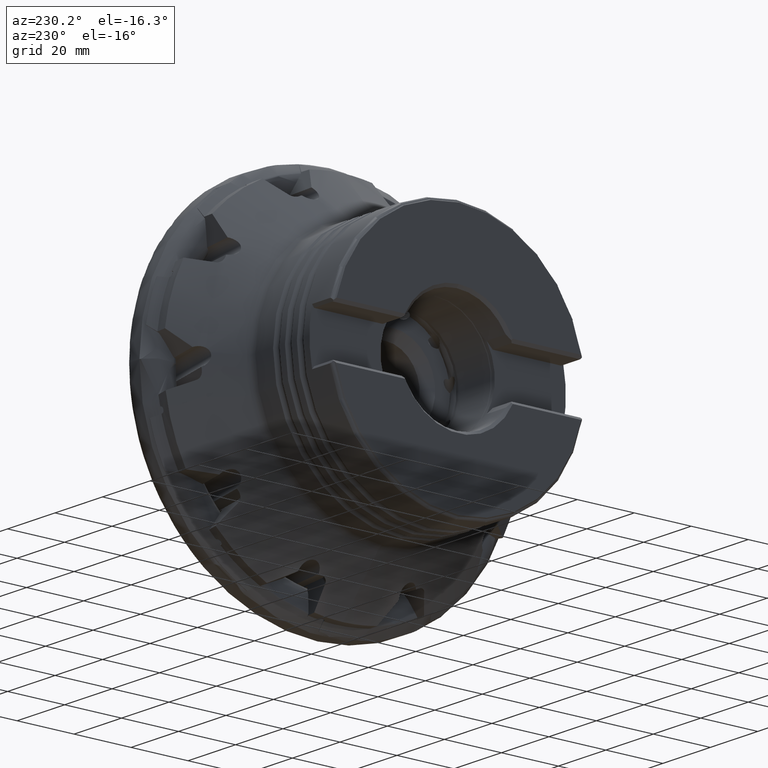
[diagram: clean part render]
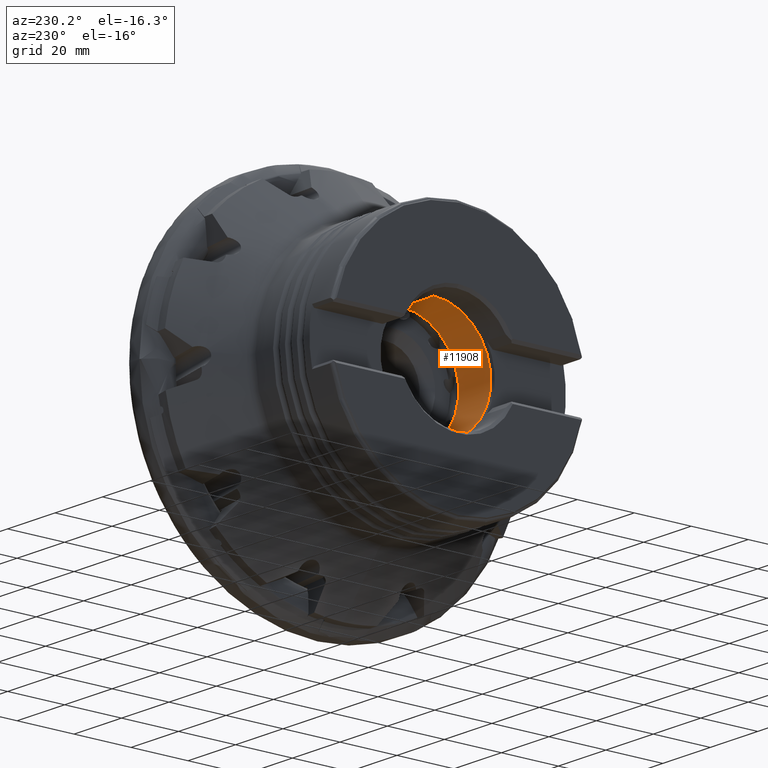
[diagram: same view with one face highlighted and labeled with its STEP entity id]
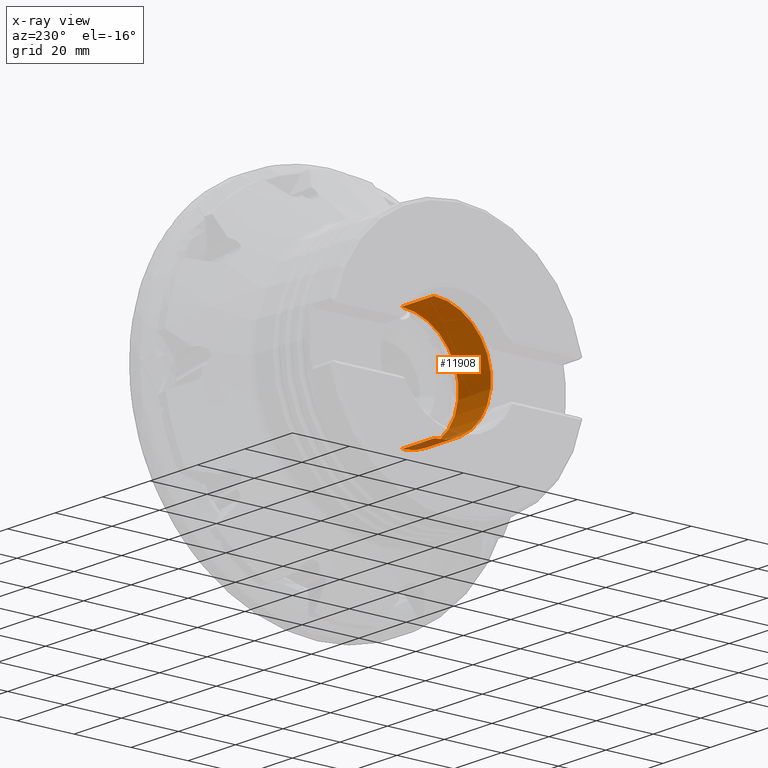
[diagram: x-ray of the same camera — body ghosted, the highlighted face saturated]
A machine part, auxiliary view. The second image highlights one B-rep face of the part: STEP entity #11908.
The next image is the same camera in x-ray: the body ghosted, the highlighted face saturated — about 5% of this face is hidden behind the body in this view.
In plain terms, the highlighted cylindrical surface (partial cylindrical patch) has radius 20 mm, axis along (-1, -0, -0).
Its self-contained STEP definition (entity closure, byte-faithful):
#1019 = EDGE_CURVE ( 'NONE', #4755, #1032, #20255, .T. ) ;
#1032 = VERTEX_POINT ( 'NONE', #7698 ) ;
#1233 = DIRECTION ( 'NONE',  ( -1.000000000000000000, 0.0000000000000000000, 0.0000000000000000000 ) ) ;
#3003 = CARTESIAN_POINT ( 'NONE',  ( -34.14999999999999900, 0.0000000000000000000, 20.00000000000000000 ) ) ;
#3705 = VERTEX_POINT ( 'NONE', #18218 ) ;
#3814 = CIRCLE ( 'NONE', #11357, 20.00000000000000000 ) ;
#4755 = VERTEX_POINT ( 'NONE', #16849 ) ;
#5832 = ORIENTED_EDGE ( 'NONE', *, *, #18837, .F. ) ;
#7390 = ORIENTED_EDGE ( 'NONE', *, *, #12836, .T. ) ;
#7698 = CARTESIAN_POINT ( 'NONE',  ( -51.60000000000003000, 2.453886023791508500E-015, -20.00000000000000000 ) ) ;
#7778 = VECTOR ( 'NONE', #11798, 1000.000000000000000 ) ;
#7780 = CARTESIAN_POINT ( 'NONE',  ( -51.60000000000003000, 0.0000000000000000000, 0.0000000000000000000 ) ) ;
#8093 = DIRECTION ( 'NONE',  ( -1.000000000000000000, -0.0000000000000000000, -0.0000000000000000000 ) ) ;
#8319 = FACE_OUTER_BOUND ( 'NONE', #20303, .T. ) ;
#9067 = AXIS2_PLACEMENT_3D ( 'NONE', #7780, #9489, #21460 ) ;
#9489 = DIRECTION ( 'NONE',  ( 1.000000000000000000, -0.0000000000000000000, -0.0000000000000000000 ) ) ;
#10114 = CARTESIAN_POINT ( 'NONE',  ( -34.14999999999999900, 2.449293598294706500E-015, -20.00000000000000000 ) ) ;
#10152 = CARTESIAN_POINT ( 'NONE',  ( -34.14999999999999900, 0.0000000000000000000, 0.0000000000000000000 ) ) ;
#11234 = CARTESIAN_POINT ( 'NONE',  ( -37.97211575694034000, 0.0000000000000000000, 0.0000000000000000000 ) ) ;
#11357 = AXIS2_PLACEMENT_3D ( 'NONE', #11234, #1233, #12929 ) ;
#11482 = CARTESIAN_POINT ( 'NONE',  ( -37.97211575694034000, 2.458478449288310900E-015, 20.00000000000000000 ) ) ;
#11602 = ORIENTED_EDGE ( 'NONE', *, *, #1019, .F. ) ;
#11798 = DIRECTION ( 'NONE',  ( -1.000000000000000000, -0.0000000000000000000, -0.0000000000000000000 ) ) ;
#11836 = DIRECTION ( 'NONE',  ( 0.0000000000000000000, 0.0000000000000000000, 1.000000000000000000 ) ) ;
#11908 = ADVANCED_FACE ( 'NONE', ( #8319 ), #16730, .F. ) ;
#12836 = EDGE_CURVE ( 'NONE', #3705, #1032, #21220, .T. ) ;
#12929 = DIRECTION ( 'NONE',  ( 0.0000000000000000000, 0.0000000000000000000, -1.000000000000000000 ) ) ;
#13752 = VECTOR ( 'NONE', #14725, 1000.000000000000000 ) ;
#14725 = DIRECTION ( 'NONE',  ( -1.000000000000000000, -0.0000000000000000000, -0.0000000000000000000 ) ) ;
#16097 = VERTEX_POINT ( 'NONE', #11482 ) ;
#16539 = EDGE_CURVE ( 'NONE', #3705, #16097, #3814, .T. ) ;
#16730 = CYLINDRICAL_SURFACE ( 'NONE', #19469, 20.00000000000000000 ) ;
#16849 = CARTESIAN_POINT ( 'NONE',  ( -51.60000000000003000, 0.0000000000000000000, 20.00000000000000000 ) ) ;
#17104 = LINE ( 'NONE', #3003, #13752 ) ;
#18218 = CARTESIAN_POINT ( 'NONE',  ( -37.97211575694034000, 0.0000000000000000000, -20.00000000000000000 ) ) ;
#18837 = EDGE_CURVE ( 'NONE', #16097, #4755, #17104, .T. ) ;
#19213 = ORIENTED_EDGE ( 'NONE', *, *, #16539, .F. ) ;
#19469 = AXIS2_PLACEMENT_3D ( 'NONE', #10152, #8093, #11836 ) ;
#20255 = CIRCLE ( 'NONE', #9067, 20.00000000000000000 ) ;
#20303 = EDGE_LOOP ( 'NONE', ( #19213, #7390, #11602, #5832 ) ) ;
#21220 = LINE ( 'NONE', #10114, #7778 ) ;
#21460 = DIRECTION ( 'NONE',  ( 0.0000000000000000000, 0.0000000000000000000, 1.000000000000000000 ) ) ;